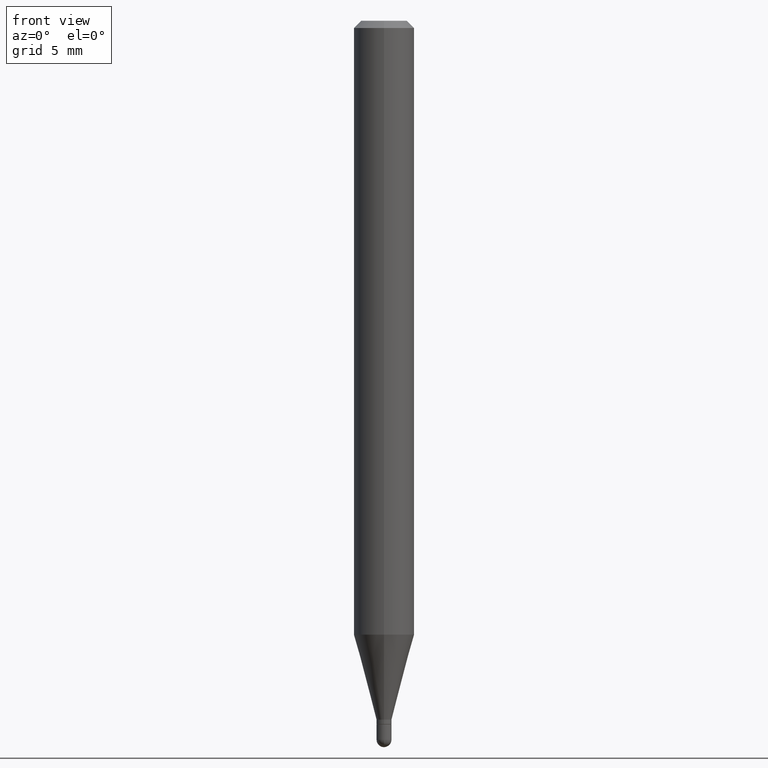
[diagram: clean part render]
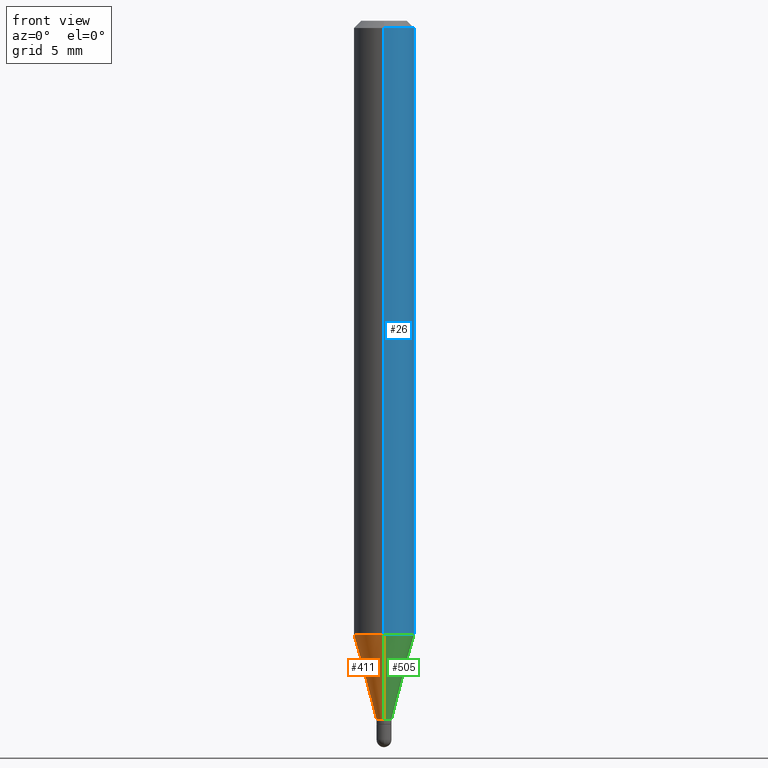
[diagram: same view with three faces highlighted in distinct colors, each labeled with its STEP entity id]
A machine part, front view with three faces highlighted in distinct colors.
Their STEP definitions:

[orange] entity #411 — the highlighted conical surface has half-angle 15 deg.
#10 = AXIS2_PLACEMENT_3D ( 'NONE', #53, #494, #450 ) ;
#14 = CARTESIAN_POINT ( 'NONE',  ( -4.364351673553606573E-16, -0.06250000000000442701, -1.267593612044263018 ) ) ;
#20 = CARTESIAN_POINT ( 'NONE',  ( -1.082359215041012724E-16, -0.01550000000000495946, -1.443000000000000060 ) ) ;
#25 = AXIS2_PLACEMENT_3D ( 'NONE', #283, #396, #440 ) ;
#53 = CARTESIAN_POINT ( 'NONE',  ( 3.528823110293220538E-29, -5.038190927198847774E-15, -1.443000000000000060 ) ) ;
#54 = EDGE_LOOP ( 'NONE', ( #453, #105, #467, #135 ) ) ;
#73 = CARTESIAN_POINT ( 'NONE',  ( 2.771116669464720070E-16, 0.01549999999999487899, -1.443000000000000060 ) ) ;
#78 = VECTOR ( 'NONE', #345, 39.37007874015748143 ) ;
#80 = CARTESIAN_POINT ( 'NONE',  ( -1.082359215041012724E-16, -0.01550000000000495946, -1.443000000000000060 ) ) ;
#84 = FACE_OUTER_BOUND ( 'NONE', #54, .T. ) ;
#105 = ORIENTED_EDGE ( 'NONE', *, *, #417, .T. ) ;
#108 = VECTOR ( 'NONE', #406, 39.37007874015748143 ) ;
#112 = LINE ( 'NONE', #80, #78 ) ;
#124 = CARTESIAN_POINT ( 'NONE',  ( 4.440892098500932831E-16, 0.06249999999999554523, -1.267593612044263462 ) ) ;
#133 = CIRCLE ( 'NONE', #10, 0.01549999999999992009 ) ;
#135 = ORIENTED_EDGE ( 'NONE', *, *, #423, .F. ) ;
#153 = AXIS2_PLACEMENT_3D ( 'NONE', #369, #155, #341 ) ;
#155 = DIRECTION ( 'NONE',  ( -2.445476860910062306E-29, 3.491469804018605313E-15, 1.000000000000000000 ) ) ;
#219 = EDGE_CURVE ( 'NONE', #383, #463, #112, .T. ) ;
#241 = VERTEX_POINT ( 'NONE', #73 ) ;
#254 = CARTESIAN_POINT ( 'NONE',  ( 1.101341240428502379E-16, 0.01549999999999488072, -1.443000000000000060 ) ) ;
#283 = CARTESIAN_POINT ( 'NONE',  ( 3.528823110293220538E-29, -5.038190927198847774E-15, -1.443000000000000060 ) ) ;
#307 = VERTEX_POINT ( 'NONE', #124 ) ;
#339 = CONICAL_SURFACE ( 'NONE', #25, 0.01549999999999992009, 0.2617993877991502960 ) ;
#341 = DIRECTION ( 'NONE',  ( -6.982962677686265922E-15, -1.000000000000000000, 4.370956789862821150E-15 ) ) ;
#345 = DIRECTION ( 'NONE',  ( -1.807323732225330534E-15, -0.2588190451025182415, 0.9659258262890689783 ) ) ;
#369 = CARTESIAN_POINT ( 'NONE',  ( 3.099870847291652545E-29, -4.425764820219419566E-15, -1.267593612044263240 ) ) ;
#378 = EDGE_CURVE ( 'NONE', #241, #307, #451, .T. ) ;
#382 = CIRCLE ( 'NONE', #153, 0.06250000000000000000 ) ;
#383 = VERTEX_POINT ( 'NONE', #20 ) ;
#396 = DIRECTION ( 'NONE',  ( -2.445476860910062306E-29, 3.491469804018605313E-15, 1.000000000000000000 ) ) ;
#406 = DIRECTION ( 'NONE',  ( 1.839019923739600710E-15, 0.2588190451025250138, 0.9659258262890670910 ) ) ;
#411 = ADVANCED_FACE ( 'NONE', ( #84 ), #339, .T. ) ;
#417 = EDGE_CURVE ( 'NONE', #241, #383, #133, .T. ) ;
#423 = EDGE_CURVE ( 'NONE', #307, #463, #382, .T. ) ;
#440 = DIRECTION ( 'NONE',  ( -6.982962677686265922E-15, -1.000000000000000000, 0.000000000000000000 ) ) ;
#450 = DIRECTION ( 'NONE',  ( -6.982962677686265922E-15, -1.000000000000000000, 0.000000000000000000 ) ) ;
#451 = LINE ( 'NONE', #254, #108 ) ;
#453 = ORIENTED_EDGE ( 'NONE', *, *, #378, .F. ) ;
#463 = VERTEX_POINT ( 'NONE', #14 ) ;
#467 = ORIENTED_EDGE ( 'NONE', *, *, #219, .T. ) ;
#494 = DIRECTION ( 'NONE',  ( -2.445476860910062306E-29, 3.491469804018605313E-15, 1.000000000000000000 ) ) ;

[blue] entity #26 — the highlighted cylindrical surface (edge-blend (fillet) strip) has radius 1.5875 mm, axis along (-0, 0, 1).
#7 = DIRECTION ( 'NONE',  ( -6.982962677686265922E-15, -1.000000000000000000, 3.483106191921935554E-15 ) ) ;
#14 = CARTESIAN_POINT ( 'NONE',  ( -4.364351673553606573E-16, -0.06250000000000442701, -1.267593612044263018 ) ) ;
#17 = AXIS2_PLACEMENT_3D ( 'NONE', #405, #357, #167 ) ;
#26 = ADVANCED_FACE ( 'NONE', ( #83 ), #323, .T. ) ;
#41 = CARTESIAN_POINT ( 'NONE',  ( 4.440892098500625669E-16, 0.06250000000000000000, -2.182168627511628321E-16 ) ) ;
#52 = CARTESIAN_POINT ( 'NONE',  ( 4.440892098500937762E-16, 0.06249999999999993755, -0.01500000000000022669 ) ) ;
#79 = EDGE_CURVE ( 'NONE', #307, #152, #438, .T. ) ;
#83 = FACE_OUTER_BOUND ( 'NONE', #210, .T. ) ;
#111 = CARTESIAN_POINT ( 'NONE',  ( -4.364351673553912750E-16, -0.06250000000000005551, -0.01499999999999979128 ) ) ;
#124 = CARTESIAN_POINT ( 'NONE',  ( 4.440892098500932831E-16, 0.06249999999999554523, -1.267593612044263462 ) ) ;
#144 = VECTOR ( 'NONE', #362, 39.37007874015748143 ) ;
#152 = VERTEX_POINT ( 'NONE', #52 ) ;
#167 = DIRECTION ( 'NONE',  ( -6.982962677686265922E-15, -1.000000000000000000, 3.491469804018605313E-15 ) ) ;
#175 = VERTEX_POINT ( 'NONE', #111 ) ;
#191 = CARTESIAN_POINT ( 'NONE',  ( -4.364351673553916201E-16, -0.06250000000000000000, 2.182168627511628321E-16 ) ) ;
#197 = CARTESIAN_POINT ( 'NONE',  ( 3.099870847291652545E-29, -4.425764820219419566E-15, -1.267593612044263240 ) ) ;
#199 = ORIENTED_EDGE ( 'NONE', *, *, #384, .T. ) ;
#210 = EDGE_LOOP ( 'NONE', ( #199, #391, #490, #351 ) ) ;
#215 = EDGE_CURVE ( 'NONE', #463, #175, #509, .T. ) ;
#223 = CIRCLE ( 'NONE', #266, 0.06250000000000000000 ) ;
#229 = DIRECTION ( 'NONE',  ( -2.445476860910062026E-29, 3.491469804018605313E-15, 1.000000000000000000 ) ) ;
#235 = VECTOR ( 'NONE', #229, 39.37007874015748143 ) ;
#266 = AXIS2_PLACEMENT_3D ( 'NONE', #280, #398, #7 ) ;
#280 = CARTESIAN_POINT ( 'NONE',  ( 3.668215291365095649E-31, -5.237204706027911593E-17, -0.01500000000000000812 ) ) ;
#303 = AXIS2_PLACEMENT_3D ( 'NONE', #197, #326, #356 ) ;
#307 = VERTEX_POINT ( 'NONE', #124 ) ;
#323 = CYLINDRICAL_SURFACE ( 'NONE', #17, 0.06250000000000000000 ) ;
#326 = DIRECTION ( 'NONE',  ( -2.445476860910062306E-29, 3.491469804018605313E-15, 1.000000000000000000 ) ) ;
#351 = ORIENTED_EDGE ( 'NONE', *, *, #215, .F. ) ;
#356 = DIRECTION ( 'NONE',  ( -6.982962677686265922E-15, -1.000000000000000000, 4.370956789862821150E-15 ) ) ;
#357 = DIRECTION ( 'NONE',  ( -2.445476860910062306E-29, 3.491469804018605313E-15, 1.000000000000000000 ) ) ;
#362 = DIRECTION ( 'NONE',  ( -2.445476860910062026E-29, 3.491469804018605313E-15, 1.000000000000000000 ) ) ;
#384 = EDGE_CURVE ( 'NONE', #463, #307, #432, .T. ) ;
#391 = ORIENTED_EDGE ( 'NONE', *, *, #79, .T. ) ;
#395 = EDGE_CURVE ( 'NONE', #175, #152, #223, .T. ) ;
#398 = DIRECTION ( 'NONE',  ( -2.445476860910062306E-29, 3.491469804018605313E-15, 1.000000000000000000 ) ) ;
#405 = CARTESIAN_POINT ( 'NONE',  ( 0.000000000000000000, 0.000000000000000000, 0.000000000000000000 ) ) ;
#432 = CIRCLE ( 'NONE', #303, 0.06250000000000000000 ) ;
#438 = LINE ( 'NONE', #41, #144 ) ;
#463 = VERTEX_POINT ( 'NONE', #14 ) ;
#490 = ORIENTED_EDGE ( 'NONE', *, *, #395, .F. ) ;
#509 = LINE ( 'NONE', #191, #235 ) ;

[green] entity #505 — the highlighted conical surface has half-angle 15 deg.
#14 = CARTESIAN_POINT ( 'NONE',  ( -4.364351673553606573E-16, -0.06250000000000442701, -1.267593612044263018 ) ) ;
#20 = CARTESIAN_POINT ( 'NONE',  ( -1.082359215041012724E-16, -0.01550000000000495946, -1.443000000000000060 ) ) ;
#27 = EDGE_LOOP ( 'NONE', ( #286, #481, #264, #445 ) ) ;
#38 = CARTESIAN_POINT ( 'NONE',  ( 3.528823110293220538E-29, -5.038190927198847774E-15, -1.443000000000000060 ) ) ;
#73 = CARTESIAN_POINT ( 'NONE',  ( 2.771116669464720070E-16, 0.01549999999999487899, -1.443000000000000060 ) ) ;
#78 = VECTOR ( 'NONE', #345, 39.37007874015748143 ) ;
#80 = CARTESIAN_POINT ( 'NONE',  ( -1.082359215041012724E-16, -0.01550000000000495946, -1.443000000000000060 ) ) ;
#82 = FACE_OUTER_BOUND ( 'NONE', #27, .T. ) ;
#86 = DIRECTION ( 'NONE',  ( -6.982962677686265922E-15, -1.000000000000000000, 0.000000000000000000 ) ) ;
#108 = VECTOR ( 'NONE', #406, 39.37007874015748143 ) ;
#112 = LINE ( 'NONE', #80, #78 ) ;
#124 = CARTESIAN_POINT ( 'NONE',  ( 4.440892098500932831E-16, 0.06249999999999554523, -1.267593612044263462 ) ) ;
#129 = DIRECTION ( 'NONE',  ( -6.982962677686265922E-15, -1.000000000000000000, 0.000000000000000000 ) ) ;
#160 = CARTESIAN_POINT ( 'NONE',  ( 3.528823110293220538E-29, -5.038190927198847774E-15, -1.443000000000000060 ) ) ;
#197 = CARTESIAN_POINT ( 'NONE',  ( 3.099870847291652545E-29, -4.425764820219419566E-15, -1.267593612044263240 ) ) ;
#213 = CONICAL_SURFACE ( 'NONE', #373, 0.01549999999999992009, 0.2617993877991502960 ) ;
#219 = EDGE_CURVE ( 'NONE', #383, #463, #112, .T. ) ;
#241 = VERTEX_POINT ( 'NONE', #73 ) ;
#254 = CARTESIAN_POINT ( 'NONE',  ( 1.101341240428502379E-16, 0.01549999999999488072, -1.443000000000000060 ) ) ;
#264 = ORIENTED_EDGE ( 'NONE', *, *, #384, .F. ) ;
#271 = AXIS2_PLACEMENT_3D ( 'NONE', #160, #437, #129 ) ;
#286 = ORIENTED_EDGE ( 'NONE', *, *, #402, .T. ) ;
#303 = AXIS2_PLACEMENT_3D ( 'NONE', #197, #326, #356 ) ;
#307 = VERTEX_POINT ( 'NONE', #124 ) ;
#310 = CIRCLE ( 'NONE', #271, 0.01549999999999992009 ) ;
#326 = DIRECTION ( 'NONE',  ( -2.445476860910062306E-29, 3.491469804018605313E-15, 1.000000000000000000 ) ) ;
#345 = DIRECTION ( 'NONE',  ( -1.807323732225330534E-15, -0.2588190451025182415, 0.9659258262890689783 ) ) ;
#356 = DIRECTION ( 'NONE',  ( -6.982962677686265922E-15, -1.000000000000000000, 4.370956789862821150E-15 ) ) ;
#373 = AXIS2_PLACEMENT_3D ( 'NONE', #38, #439, #86 ) ;
#378 = EDGE_CURVE ( 'NONE', #241, #307, #451, .T. ) ;
#383 = VERTEX_POINT ( 'NONE', #20 ) ;
#384 = EDGE_CURVE ( 'NONE', #463, #307, #432, .T. ) ;
#402 = EDGE_CURVE ( 'NONE', #383, #241, #310, .T. ) ;
#406 = DIRECTION ( 'NONE',  ( 1.839019923739600710E-15, 0.2588190451025250138, 0.9659258262890670910 ) ) ;
#432 = CIRCLE ( 'NONE', #303, 0.06250000000000000000 ) ;
#437 = DIRECTION ( 'NONE',  ( -2.445476860910062306E-29, 3.491469804018605313E-15, 1.000000000000000000 ) ) ;
#439 = DIRECTION ( 'NONE',  ( -2.445476860910062306E-29, 3.491469804018605313E-15, 1.000000000000000000 ) ) ;
#445 = ORIENTED_EDGE ( 'NONE', *, *, #219, .F. ) ;
#451 = LINE ( 'NONE', #254, #108 ) ;
#463 = VERTEX_POINT ( 'NONE', #14 ) ;
#481 = ORIENTED_EDGE ( 'NONE', *, *, #378, .T. ) ;
#505 = ADVANCED_FACE ( 'NONE', ( #82 ), #213, .T. ) ;